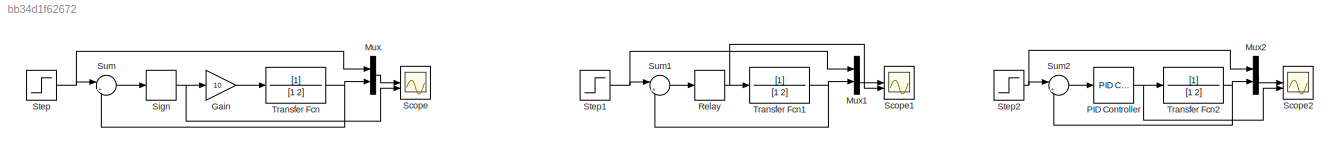
MODEL slx_bb34d1f62672
KIND model
CONFIG AbsTol = auto
CONFIG EnableMultiTasking = off
CONFIG FixedStep = auto
CONFIG MaxStep = auto
CONFIG MinStep = auto
CONFIG RelTol = 1e-3
CONFIG SampleTimeConstraint = Unconstrained
CONFIG SolverName = VariableStepAuto
CONFIG StartTime = 0.0
CONFIG StopTime = 20.0
BLOCK [Gain] Gain
  Gain = 10
BLOCK [Mux] Mux
  DisplayOption = bar
  Inputs = 2
BLOCK [Mux] Mux1
  DisplayOption = bar
  Inputs = 2
BLOCK [Mux] Mux2
  DisplayOption = bar
  Inputs = 2
BLOCK [Reference] PID Controller  REF=slpidlib/PID Controller
  LibrarySourceBlock = simulink/Continuous/PID Controller
  SourceBlock = slpidlib/PID Controller
  SourceType = PID 1dof
BLOCK [Relay] Relay
  OffSwitchValue = -0.2
  OnOutputValue = 10
  OnSwitchValue = 0.2
BLOCK [Scope] Scope
  Floating = off
  NumInputPorts = 2
  ScopeSpecificationString = Simulink.scopes.TimeScopeBlockCfg('CurrentConfiguration', extmgr.ConfigurationSet(extmgr.Configuration('Core','General UI',true),extmgr.Configuration('Core','Source UI',true),extmgr.Configuration('Sources','WiredSimulink',true),extmgr.Configuration('Visuals','Time Domain',true,'SerializedDisplays',{struct('MinYLimReal','-1.85708','MaxYLimReal','3.12214','YLabelReal','','MinYLimMag','0.00000','MaxY...<+2348ch>
BLOCK [Scope] Scope1
  Floating = off
  NumInputPorts = 2
  ScopeSpecificationString = Simulink.scopes.TimeScopeBlockCfg('CurrentConfiguration', extmgr.ConfigurationSet(extmgr.Configuration('Core','General UI',true),extmgr.Configuration('Core','Source UI',true),extmgr.Configuration('Sources','WiredSimulink',true,'DataLoggingVariableName','ScopeData1'),extmgr.Configuration('Visuals','Time Domain',true,'SerializedDisplays',{struct('MinYLimReal','-0.275','MaxYLimReal','2.475','YLabelRe...<+2312ch>
BLOCK [Scope] Scope2
  Floating = off
  NumInputPorts = 2
  ScopeSpecificationString = Simulink.scopes.TimeScopeBlockCfg('CurrentConfiguration', extmgr.ConfigurationSet(extmgr.Configuration('Core','General UI',true),extmgr.Configuration('Core','Source UI',true),extmgr.Configuration('Sources','WiredSimulink',true,'DataLoggingVariableName','ScopeData2'),extmgr.Configuration('Visuals','Time Domain',true,'SerializedDisplays',{struct('MinYLimReal','-0.25','MaxYLimReal','2.25','YLabelReal...<+2334ch>
BLOCK [Signum] Sign
  ZeroCross = off
BLOCK [Step] Step
  After = 2
  Before = 1
  SampleTime = 0
  Time = 10
BLOCK [Step] Step1
  After = 2
  Before = 1
  SampleTime = 0
  Time = 10
BLOCK [Step] Step2
  After = 2
  Before = 1
  SampleTime = 0
  Time = 10
BLOCK [Sum] Sum
  Inputs = |+-
BLOCK [Sum] Sum1
  Inputs = |+-
BLOCK [Sum] Sum2
  Inputs = |+-
BLOCK [TransferFcn] Transfer Fcn
  Denominator = [1 2]
BLOCK [TransferFcn] Transfer Fcn1
  Denominator = [1 2]
BLOCK [TransferFcn] Transfer Fcn2
  Denominator = [1 2]
LINE Gain:1 -> Transfer Fcn:1
LINE Mux1:1 -> Scope1:1
LINE Mux2:1 -> Scope2:1
LINE Mux:1 -> Scope:1
NET PID Controller:1 -> Scope2:2, Transfer Fcn2:1
NET Relay:1 -> Scope1:2, Transfer Fcn1:1
NET Sign:1 -> Gain:1, Scope:2
NET Step1:1 -> Mux1:1, Sum1:1
NET Step2:1 -> Mux2:1, Sum2:1
NET Step:1 -> Mux:1, Sum:1
LINE Sum1:1 -> Relay:1
LINE Sum2:1 -> PID Controller:1
LINE Sum:1 -> Sign:1
NET Transfer Fcn1:1 -> Mux1:2, Sum1:2
NET Transfer Fcn2:1 -> Mux2:2, Sum2:2
NET Transfer Fcn:1 -> Mux:2, Sum:2
note: NET lines group one-source signal fan-out (src -> all destinations, sorted); 1:1 wires keep LINE
